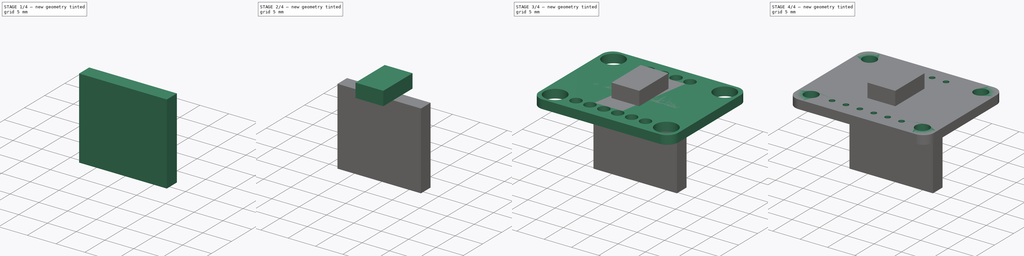
[diagram: build sequence overview — one tinted view per stage of 4, left to right]
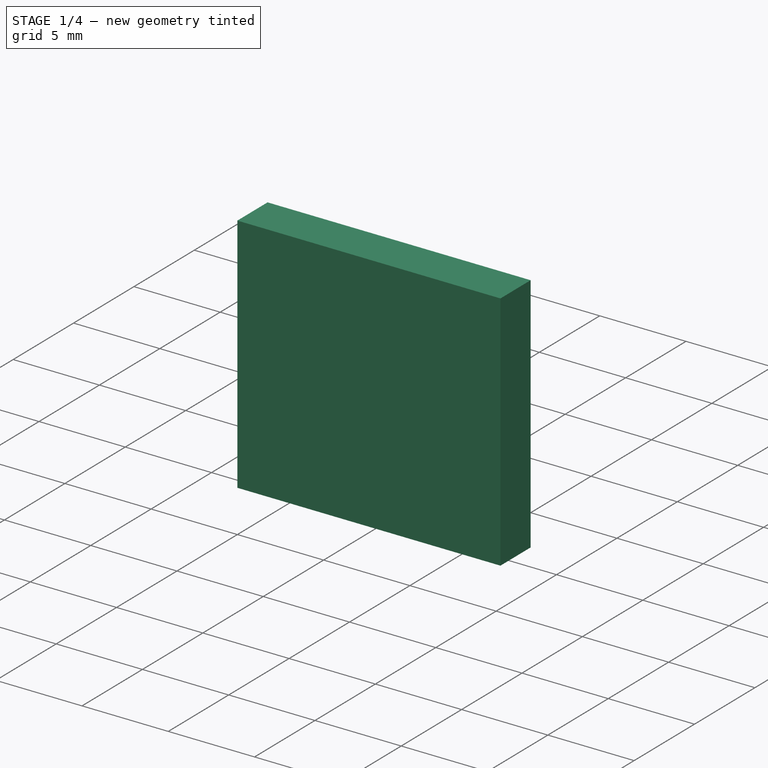
[diagram: stage 1 of 4 — iso view after this stage's code; geometry added in this stage tinted green]
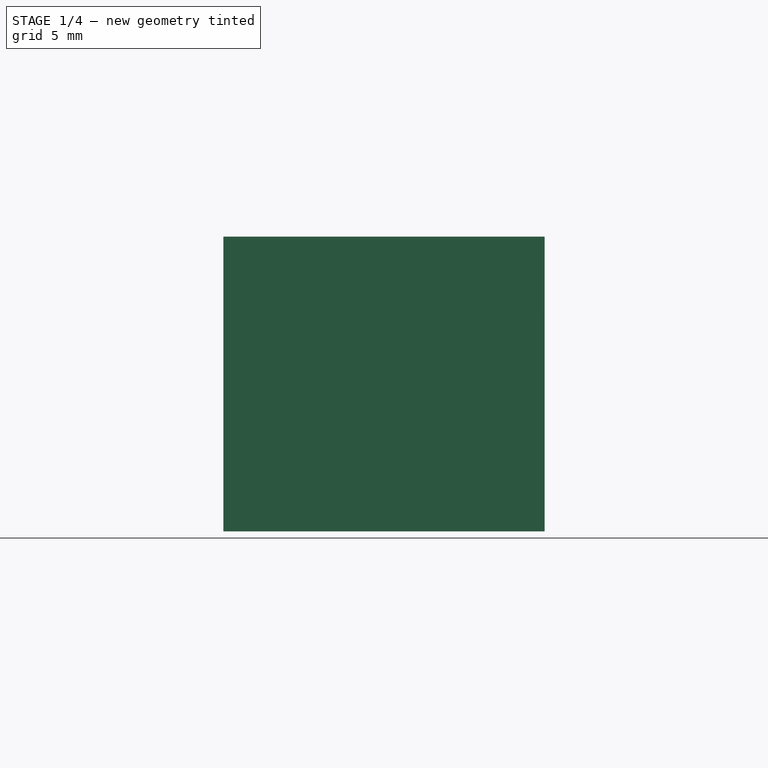
[diagram: stage 1 of 4 — front view after this stage's code; geometry added in this stage tinted green]
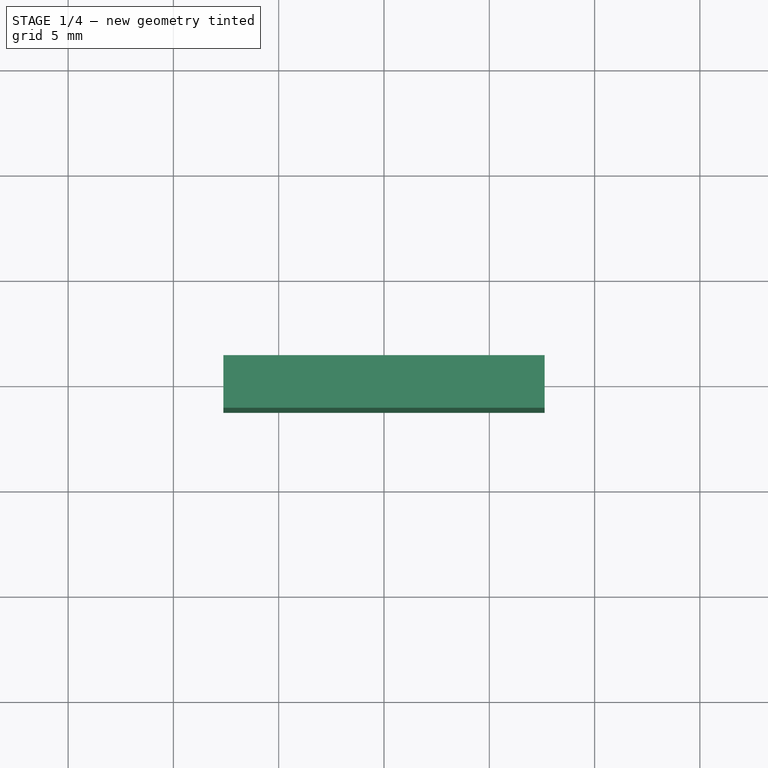
[diagram: stage 1 of 4 — top view after this stage's code; geometry added in this stage tinted green]
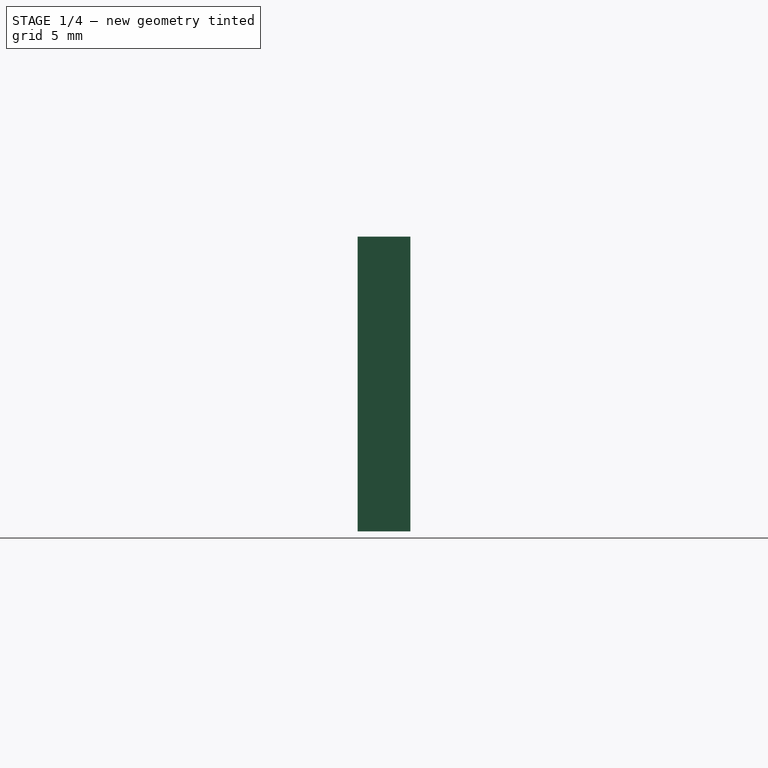
[diagram: stage 1 of 4 — right view after this stage's code; geometry added in this stage tinted green]
FCSTD DOCUMENT  (FreeCAD 0.19R24276 (Git))
Label: Adafruit_BNO055
License: All rights reserved
LicenseURL: http://en.wikipedia.org/wiki/All_rights_reserved
objects: Sketcher::SketchObject×13, PartDesign::Pad×8, PartDesign::Body×8, PartDesign::Pocket×5, App::Part×1
note: 47 computed .brp shape members not serialized (recipe doc carries the construction recipe); baked Part::Feature solids carry a one-line shape summary decoded from their .brp

FEATURE [PartDesign::Body] Body005  label="PinBlock1"
  Group = -> [Sketch009,Pad005]
  Origin = -> Origin006
  Placement = pos=(0,-7.6,-1.6) rot=(0,0,1;0rad)
  Tip = -> Pad005
FEATURE [Sketcher::SketchObject] Sketch010
  FullyConstrained = true
  MapMode = 5
  Support = -> [XY_Plane007]
  sketch-geometry (6):
    g0: LineSegment StartX=-6.625 StartY=0.3 StartZ=0 EndX=6.625 EndY=0.3 EndZ=0
    g1: LineSegment StartX=6.625 StartY=0.3 StartZ=0 EndX=6.625 EndY=-0.3 EndZ=0
    g2: LineSegment StartX=6.625 StartY=-0.3 StartZ=0 EndX=-6.625 EndY=-0.3 EndZ=0
    g3: LineSegment StartX=-6.625 StartY=-0.3 StartZ=0 EndX=-6.625 EndY=0.3 EndZ=0
    g4: LineSegment StartX=0 StartY=0 StartZ=0 EndX=2e-16 EndY=0.3 EndZ=0
    g5: LineSegment StartX=0 StartY=0 StartZ=0 EndX=6.625 EndY=0 EndZ=0
  constraints (16):
    c: Coincident(g0,g1)
    c: Coincident(g1,g2)
    c: Coincident(g2,g3)
    c: Coincident(g3,g0)
    c: Horizontal(g0)
    c: Horizontal(g2)
    c: Vertical(g1)
    c: Vertical(g3)
    c: Coincident(g4,g-1)
    c: PointOnObject(g4,g-2)
    c: Coincident(g5,g-1)
    c: PointOnObject(g5,g-1)
    c: Symmetric(g0,g0,g4)
    c: Symmetric(g0,g1,g5)
    c: DistanceY(g1,g0) = 0.6
    c: DistanceX(g0,g0) = 13.25
FEATURE [PartDesign::Pad] Pad006
  Direction = (1,1,1)
  Length = 8.5
  Length2 = 100
  Profile = -> Sketch010
  Reversed = true
  Type = 0
FEATURE [Sketcher::SketchObject] Sketch011
  FullyConstrained = true
  MapMode = 5
  Placement = pos=(0,0,0) rot=(1,0,0;1.5708rad)
  Support = -> [XZ_Plane007]
  sketch-geometry (29):
    g0: LineSegment StartX=-0.95 StartY=-0.5 StartZ=0 EndX=0.95 EndY=-0.5 EndZ=0
    g1: LineSegment StartX=0.95 StartY=-0.5 StartZ=0 EndX=0.95 EndY=-15.5 EndZ=0
    g2: LineSegment StartX=0.95 StartY=-15.5 StartZ=0 EndX=-0.95 EndY=-15.5 EndZ=0
    g3: LineSegment StartX=-0.95 StartY=-15.5 StartZ=0 EndX=-0.95 EndY=-0.5 EndZ=0
    g4: LineSegment StartX=0 StartY=0 StartZ=0 EndX=0 EndY=-0.5 EndZ=0
    g5: LineSegment StartX=-3.5 StartY=-0.5 StartZ=0 EndX=-1.6 EndY=-0.5 EndZ=0
    g6: LineSegment StartX=-1.6 StartY=-0.5 StartZ=0 EndX=-1.6 EndY=-15.5 EndZ=0
    g7: LineSegment StartX=-1.6 StartY=-15.5 StartZ=0 EndX=-3.5 EndY=-15.5 EndZ=0
    g8: LineSegment StartX=-3.5 StartY=-15.5 StartZ=0 EndX=-3.5 EndY=-0.5 EndZ=0
    g9: LineSegment StartX=-6.05 StartY=-0.5 StartZ=0 EndX=-4.15 EndY=-0.5 EndZ=0
    g10: LineSegment StartX=-4.15 StartY=-0.5 StartZ=0 EndX=-4.15 EndY=-15.5 EndZ=0
    g11: LineSegment StartX=-4.15 StartY=-15.5 StartZ=0 EndX=-6.05 EndY=-15.5 EndZ=0
    g12: LineSegment StartX=-6.05 StartY=-15.5 StartZ=0 EndX=-6.05 EndY=-0.5 EndZ=0
    g13: LineSegment StartX=1.6 StartY=-0.5 StartZ=0 EndX=3.5 EndY=-0.5 EndZ=0
    g14: LineSegment StartX=3.5 StartY=-0.5 StartZ=0 EndX=3.5 EndY=-15.5 EndZ=0
    g15: LineSegment StartX=3.5 StartY=-15.5 StartZ=0 EndX=1.6 EndY=-15.5 EndZ=0
    g16: LineSegment StartX=1.6 StartY=-15.5 StartZ=0 EndX=1.6 EndY=-0.5 EndZ=0
    g17: LineSegment StartX=4.15 StartY=-0.5 StartZ=0 EndX=6.05 EndY=-0.5 EndZ=0
    g18: LineSegment StartX=6.05 StartY=-0.5 StartZ=0 EndX=6.05 EndY=-15.5 EndZ=0
    g19: LineSegment StartX=6.05 StartY=-15.5 StartZ=0 EndX=4.15 EndY=-15.5 EndZ=0
    g20: LineSegment StartX=4.15 StartY=-15.5 StartZ=0 EndX=4.15 EndY=-0.5 EndZ=0
    g21: LineSegment StartX=-4.15 StartY=-0.5 StartZ=0 EndX=-3.5 EndY=-0.5 EndZ=0
    g22: LineSegment StartX=-1.6 StartY=-0.5 StartZ=0 EndX=-0.95 EndY=-0.5 EndZ=0
    g23: LineSegment StartX=0.95 StartY=-0.5 StartZ=0 EndX=1.6 EndY=-0.5 EndZ=0
    g24: LineSegment StartX=3.5 StartY=-0.5 StartZ=0 EndX=4.15 EndY=-0.5 EndZ=0
    g25: LineSegment StartX=-4.15 StartY=-15.5 StartZ=0 EndX=-3.5 EndY=-15.5 EndZ=0
    g26: LineSegment StartX=-1.6 StartY=-15.5 StartZ=0 EndX=-0.95 EndY=-15.5 EndZ=0
    g27: LineSegment StartX=0.95 StartY=-15.5 StartZ=0 EndX=1.6 EndY=-15.5 EndZ=0
    g28: LineSegment StartX=3.5 StartY=-15.5 StartZ=0 EndX=4.15 EndY=-15.5 EndZ=0
  constraints (78):
    c: Coincident(g0,g1)
    c: Coincident(g1,g2)
    c: Coincident(g2,g3)
    c: Coincident(g3,g0)
    c: Horizontal(g0)
    c: Horizontal(g2)
    c: Vertical(g1)
    c: Vertical(g3)
    c: Coincident(g4,g-1)
    c: Vertical(g4)
    c: Symmetric(g0,g0,g4)
    c: Distance(g0) = 1.9
    c: Distance(g1) = 15
    c: DistanceY(g4,g-1) = 0.5
    c: Coincident(g5,g6)
    c: Coincident(g6,g7)
    c: Coincident(g7,g8)
    c: Coincident(g8,g5)
    c: Horizontal(g5)
    c: Horizontal(g7)
    c: Vertical(g6)
    c: Vertical(g8)
    c: Coincident(g9,g10)
    c: Coincident(g10,g11)
    c: Coincident(g11,g12)
    c: Coincident(g12,g9)
    c: Horizontal(g9)
    c: Horizontal(g11)
    c: Vertical(g10)
    c: Vertical(g12)
    c: Coincident(g13,g14)
    c: Coincident(g14,g15)
    c: Coincident(g15,g16)
    c: Coincident(g16,g13)
    c: Horizontal(g13)
    c: Horizontal(g15)
    c: Vertical(g14)
    c: Vertical(g16)
    c: Coincident(g17,g18)
    c: Coincident(g18,g19)
    c: Coincident(g19,g20)
    c: Coincident(g20,g17)
    c: Horizontal(g17)
    c: Horizontal(g19)
    c: Vertical(g18)
    c: Vertical(g20)
    c: Coincident(g21,g9)
    c: Coincident(g21,g5)
    c: Coincident(g22,g5)
    c: Coincident(g22,g0)
    c: Coincident(g23,g0)
    c: Coincident(g23,g13)
    c: Coincident(g24,g13)
    c: Coincident(g24,g17)
    c: Coincident(g25,g10)
    c: Coincident(g25,g7)
    c: Coincident(g26,g6)
    c: Coincident(g26,g2)
    c: Horizontal(g26)
    c: Coincident(g27,g1)
    c: Coincident(g27,g15)
    c: Coincident(g28,g14)
    c: Coincident(g28,g19)
    c: Horizontal(g22)
    c: Horizontal(g21)
    c: Horizontal(g23)
    c: Horizontal(g24)
    c: Horizontal(g28)
    c: Horizontal(g27)
    c: Horizontal(g25)
    c: Equal(g21,g22)
    c: Equal(g23,g22)
    c: Equal(g23,g24)
    c: Equal(g5,g9)
    c: Equal(g0,g5)
    c: Equal(g5,g13)
    c: Equal(g13,g17)
    c: Distance(g23) = 0.65
FEATURE [PartDesign::Pocket] Pocket004
  BaseFeature = -> Pad006
  Length = 5
  Length2 = 100
  Midplane = true
  Profile = -> Sketch011
  Type = 1
FEATURE [PartDesign::Body] Body006  label="Pins"
  Group = -> [Sketch010,Pad006,Sketch011,Pocket004]
  Origin = -> Origin007
  Placement = pos=(0,-7.7,-1.6) rot=(0,0,1;0rad)
  Tip = -> Pocket004
FEATURE [Sketcher::SketchObject] Sketch012
  FullyConstrained = true
  MapMode = 5
  Support = -> [XY_Plane008]
  sketch-geometry (6):
    g0: LineSegment StartX=-7.625 StartY=1.25 StartZ=0 EndX=7.625 EndY=1.25 EndZ=0
    g1: LineSegment StartX=7.625 StartY=1.25 StartZ=0 EndX=7.625 EndY=-1.25 EndZ=0
    g2: LineSegment StartX=7.625 StartY=-1.25 StartZ=0 EndX=-7.625 EndY=-1.25 EndZ=0
    g3: LineSegment StartX=-7.625 StartY=-1.25 StartZ=0 EndX=-7.625 EndY=1.25 EndZ=0
    g4: LineSegment StartX=0 StartY=0 StartZ=0 EndX=-2e-15 EndY=1.25 EndZ=0
    g5: LineSegment StartX=0 StartY=0 StartZ=0 EndX=7.625 EndY=0 EndZ=0
  constraints (16):
    c: Coincident(g0,g1)
    c: Coincident(g1,g2)
    c: Coincident(g2,g3)
    c: Coincident(g3,g0)
    c: Horizontal(g0)
    c: Horizontal(g2)
    c: Vertical(g1)
    c: Vertical(g3)
    c: Coincident(g4,g-1)
    c: PointOnObject(g4,g-2)
    c: Coincident(g5,g-1)
    c: PointOnObject(g5,g-1)
    c: Symmetric(g0,g0,g4)
    c: Symmetric(g0,g1,g5)
    c: DistanceY(g1,g0) = 2.5
    c: DistanceX(g0,g0) = 15.25
FEATURE [PartDesign::Pad] Pad007
  Direction = (1,1,1)
  Length = 14
  Length2 = 100
  Profile = -> Sketch012
  Reversed = true
  Type = 0
FEATURE [PartDesign::Body] Body007  label="PinBlock2"
  Group = -> [Sketch012,Pad007]
  Origin = -> Origin008
  Placement = pos=(0,-7.7,-4.5) rot=(0,0,1;0rad)
  Tip = -> Pad007
FEATURE [App::Part] Part  label="AdaF_BNO055"
  Group = -> [Body,Body001,Body002,Body003,Body004,Body005,Body006,Body007]
  Origin = -> Origin
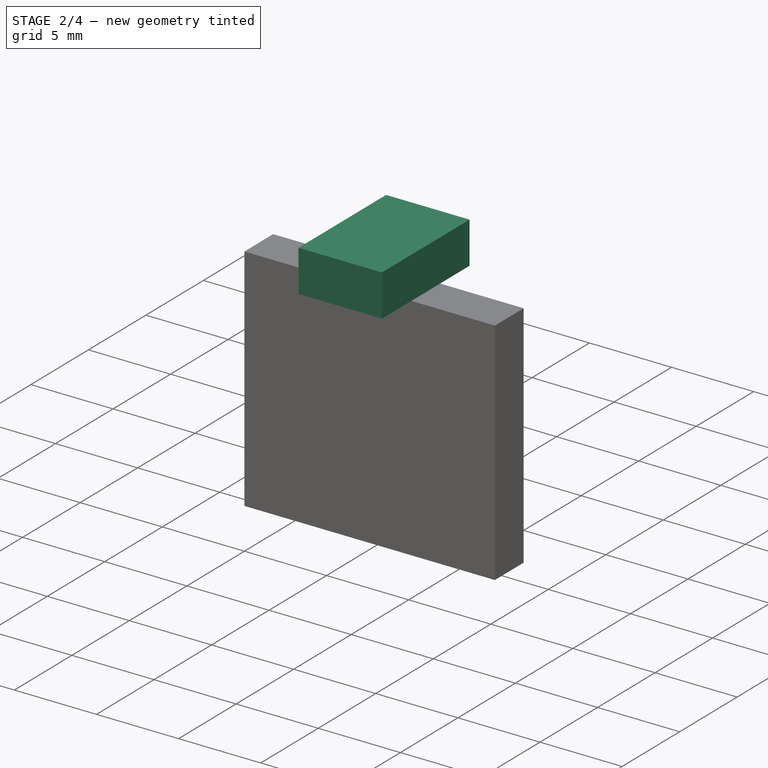
[diagram: stage 2 of 4 — iso view after this stage's code; geometry added in this stage tinted green]
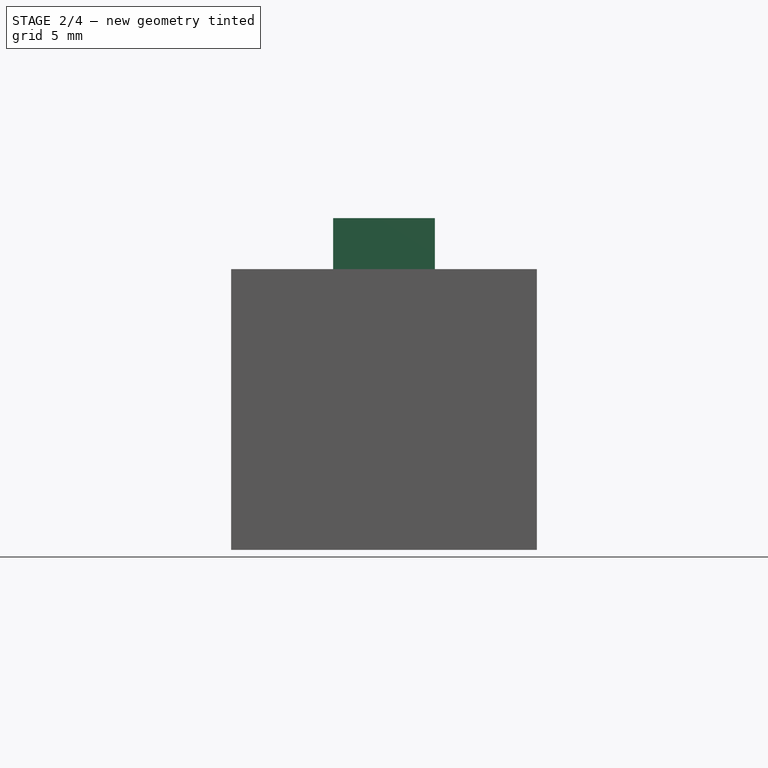
[diagram: stage 2 of 4 — front view after this stage's code; geometry added in this stage tinted green]
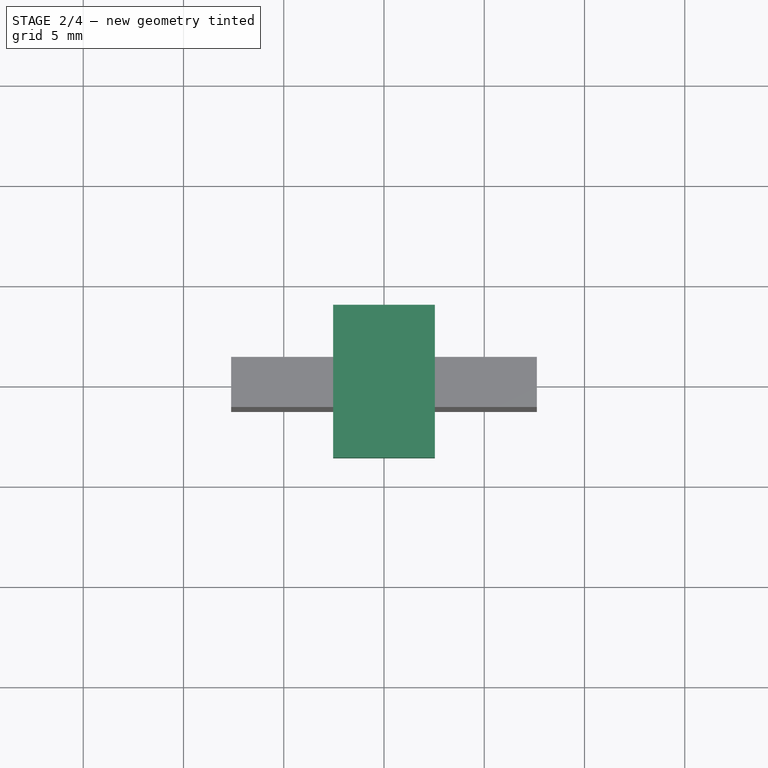
[diagram: stage 2 of 4 — top view after this stage's code; geometry added in this stage tinted green]
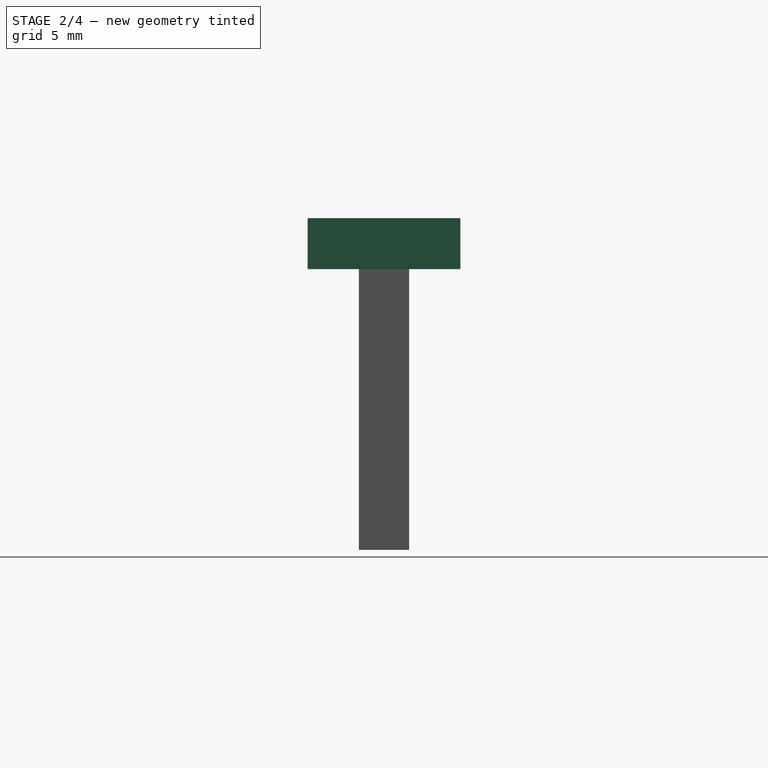
[diagram: stage 2 of 4 — right view after this stage's code; geometry added in this stage tinted green]
FEATURE [PartDesign::Body] Body002  label="MainChip"
  Group = -> [Sketch006,Pad002]
  Origin = -> Origin003
  Tip = -> Pad002
FEATURE [Sketcher::SketchObject] Sketch007
  FullyConstrained = true
  MapMode = 5
  Support = -> [XY_Plane004]
  sketch-geometry (6):
    g0: LineSegment StartX=-2.54 StartY=3.81 StartZ=0 EndX=2.54 EndY=3.81 EndZ=0
    g1: LineSegment StartX=2.54 StartY=3.81 StartZ=0 EndX=2.54 EndY=-3.81 EndZ=0
    g2: LineSegment StartX=2.54 StartY=-3.81 StartZ=0 EndX=-2.54 EndY=-3.81 EndZ=0
    g3: LineSegment StartX=-2.54 StartY=-3.81 StartZ=0 EndX=-2.54 EndY=3.81 EndZ=0
    g4: LineSegment StartX=0 StartY=0 StartZ=0 EndX=0 EndY=3.81 EndZ=0
    g5: LineSegment StartX=0 StartY=0 StartZ=0 EndX=2.54 EndY=0 EndZ=0
  constraints (16):
    c: Coincident(g0,g1)
    c: Coincident(g1,g2)
    c: Coincident(g2,g3)
    c: Coincident(g3,g0)
    c: Horizontal(g0)
    c: Horizontal(g2)
    c: Vertical(g1)
    c: Vertical(g3)
    c: Coincident(g4,g-1)
    c: PointOnObject(g4,g-2)
    c: Coincident(g5,g-1)
    c: PointOnObject(g5,g-1)
    c: Symmetric(g0,g0,g4)
    c: Symmetric(g0,g1,g5)
    c: Distance(g3) = 7.62
    c: Distance(g0) = 5.08
FEATURE [PartDesign::Pad] Pad003
  Direction = (1,1,1)
  Length = 2.54
  Length2 = 100
  Profile = -> Sketch007
  Type = 0
FEATURE [PartDesign::Body] Body003  label="QwiicConnect1"
  Group = -> [Sketch007,Pad003]
  Origin = -> Origin004
  Placement = pos=(-10,0,0) rot=(0,0,1;0rad)
  Tip = -> Pad003
FEATURE [Sketcher::SketchObject] Sketch008
  FullyConstrained = true
  MapMode = 5
  Support = -> [XY_Plane005]
  sketch-geometry (6):
    g0: LineSegment StartX=-2.54 StartY=3.81 StartZ=0 EndX=2.54 EndY=3.81 EndZ=0
    g1: LineSegment StartX=2.54 StartY=3.81 StartZ=0 EndX=2.54 EndY=-3.81 EndZ=0
    g2: LineSegment StartX=2.54 StartY=-3.81 StartZ=0 EndX=-2.54 EndY=-3.81 EndZ=0
    g3: LineSegment StartX=-2.54 StartY=-3.81 StartZ=0 EndX=-2.54 EndY=3.81 EndZ=0
    g4: LineSegment StartX=0 StartY=0 StartZ=0 EndX=0 EndY=3.81 EndZ=0
    g5: LineSegment StartX=0 StartY=0 StartZ=0 EndX=2.54 EndY=0 EndZ=0
  constraints (16):
    c: Coincident(g0,g1)
    c: Coincident(g1,g2)
    c: Coincident(g2,g3)
    c: Coincident(g3,g0)
    c: Horizontal(g0)
    c: Horizontal(g2)
    c: Vertical(g1)
    c: Vertical(g3)
    c: Coincident(g4,g-1)
    c: PointOnObject(g4,g-2)
    c: Coincident(g5,g-1)
    c: PointOnObject(g5,g-1)
    c: Symmetric(g0,g0,g4)
    c: Symmetric(g0,g1,g5)
    c: Distance(g3) = 7.62
    c: Distance(g0) = 5.08
FEATURE [PartDesign::Pad] Pad004
  Direction = (1,1,1)
  Length = 2.54
  Length2 = 100
  Profile = -> Sketch008
  Type = 0
FEATURE [PartDesign::Body] Body004  label="QwiicConnect2"
  Group = -> [Sketch008,Pad004]
  Origin = -> Origin005
  Placement = pos=(10,0,0) rot=(0,0,1;0rad)
  Tip = -> Pad004
FEATURE [Sketcher::SketchObject] Sketch009
  FullyConstrained = true
  MapMode = 5
  Support = -> [XY_Plane006]
  sketch-geometry (6):
    g0: LineSegment StartX=-7.625 StartY=1.25 StartZ=0 EndX=7.625 EndY=1.25 EndZ=0
    g1: LineSegment StartX=7.625 StartY=1.25 StartZ=0 EndX=7.625 EndY=-1.25 EndZ=0
    g2: LineSegment StartX=7.625 StartY=-1.25 StartZ=0 EndX=-7.625 EndY=-1.25 EndZ=0
    g3: LineSegment StartX=-7.625 StartY=-1.25 StartZ=0 EndX=-7.625 EndY=1.25 EndZ=0
    g4: LineSegment StartX=0 StartY=0 StartZ=0 EndX=7.625 EndY=0 EndZ=0
    g5: LineSegment StartX=0 StartY=0 StartZ=0 EndX=-8e-16 EndY=1.25 EndZ=0
  constraints (16):
    c: Coincident(g0,g1)
    c: Coincident(g1,g2)
    c: Coincident(g2,g3)
    c: Coincident(g3,g0)
    c: Horizontal(g0)
    c: Horizontal(g2)
    c: Vertical(g1)
    c: Vertical(g3)
    c: Coincident(g4,g-1)
    c: PointOnObject(g4,g-1)
    c: Coincident(g5,g-1)
    c: PointOnObject(g5,g-2)
    c: Symmetric(g0,g0,g5)
    c: Symmetric(g0,g1,g4)
    c: DistanceY(g1,g0) = 2.5
    c: DistanceX(g0,g0) = 15.25
FEATURE [PartDesign::Pad] Pad005
  Direction = (1,1,1)
  Length = 2.5
  Length2 = 100
  Profile = -> Sketch009
  Reversed = true
  Type = 0
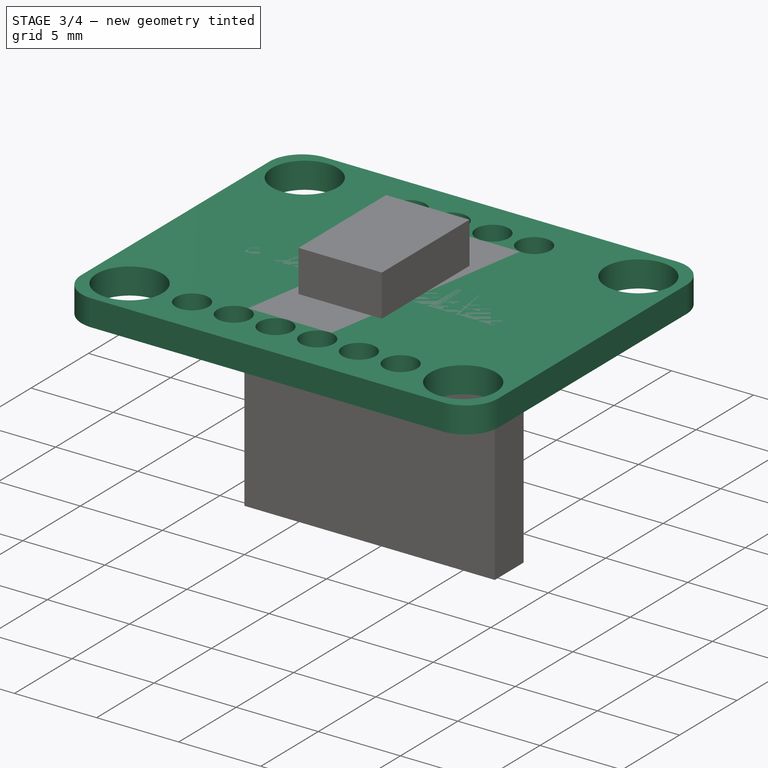
[diagram: stage 3 of 4 — iso view after this stage's code; geometry added in this stage tinted green]
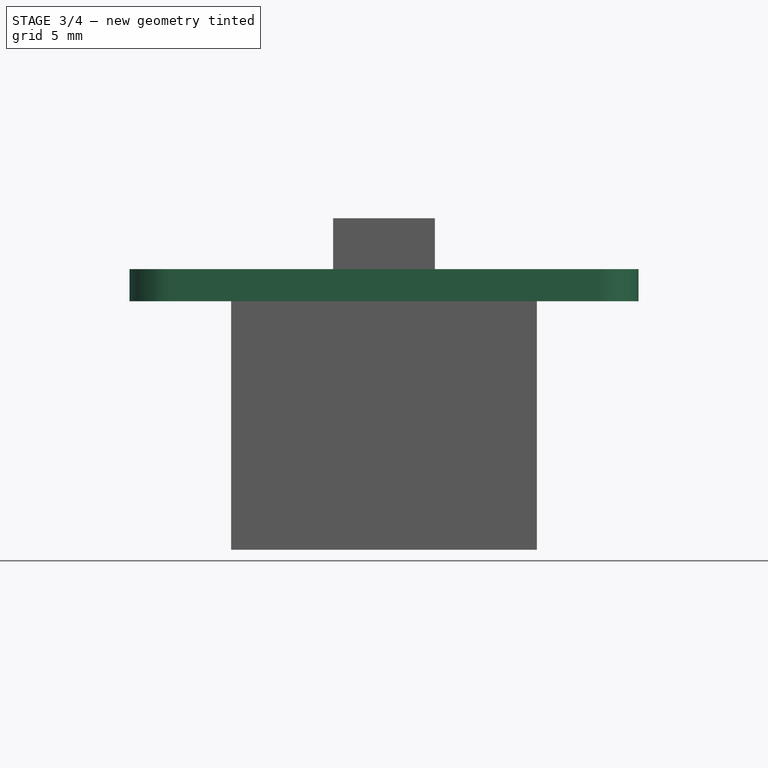
[diagram: stage 3 of 4 — front view after this stage's code; geometry added in this stage tinted green]
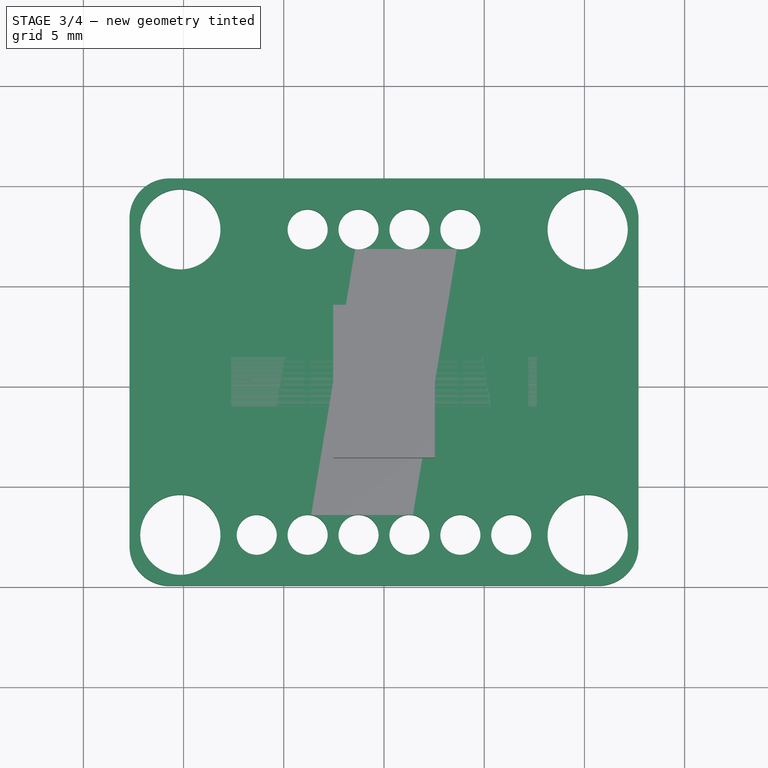
[diagram: stage 3 of 4 — top view after this stage's code; geometry added in this stage tinted green]
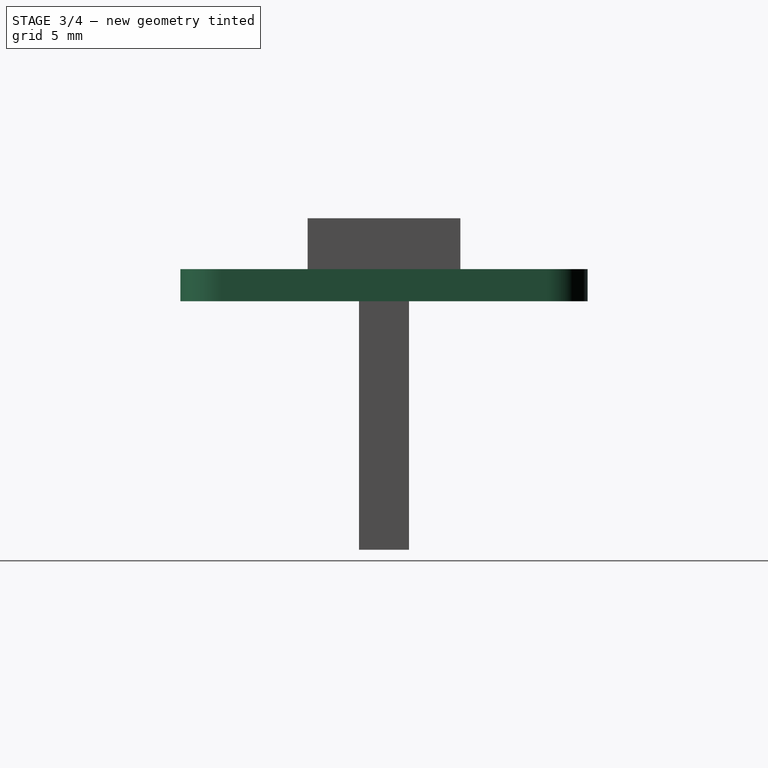
[diagram: stage 3 of 4 — right view after this stage's code; geometry added in this stage tinted green]
FEATURE [Sketcher::SketchObject] Sketch
  FullyConstrained = true
  MapMode = 5
  Support = -> [XY_Plane001]
  sketch-geometry (10):
    g0: LineSegment StartX=-10.7 StartY=10.16 StartZ=0 EndX=10.7 EndY=10.16 EndZ=0
    g1: LineSegment StartX=12.7 StartY=8.16 StartZ=0 EndX=12.7 EndY=-8.16 EndZ=0
    g2: LineSegment StartX=10.7 StartY=-10.16 StartZ=0 EndX=-10.7 EndY=-10.16 EndZ=0
    g3: LineSegment StartX=-12.7 StartY=-8.16 StartZ=0 EndX=-12.7 EndY=8.16 EndZ=0
    g4: LineSegment StartX=0 StartY=0 StartZ=0 EndX=0 EndY=10.16 EndZ=0
    g5: LineSegment StartX=0 StartY=0 StartZ=0 EndX=12.7 EndY=0 EndZ=0
    g6: ArcOfCircle CenterX=-10.7 CenterY=8.16 CenterZ=0 NormalX=0 NormalY=0 NormalZ=1 AngleXU=0 Radius=2 StartAngle=1.5708 EndAngle=3.14159
    g7: ArcOfCircle CenterX=10.7 CenterY=8.16 CenterZ=0 NormalX=0 NormalY=0 NormalZ=1 AngleXU=0 Radius=2 StartAngle=0 EndAngle=1.5708
    g8: ArcOfCircle CenterX=10.7 CenterY=-8.16 CenterZ=0 NormalX=0 NormalY=0 NormalZ=1 AngleXU=0 Radius=2 StartAngle=4.71239 EndAngle=6.28319
    g9: ArcOfCircle CenterX=-10.7 CenterY=-8.16 CenterZ=0 NormalX=0 NormalY=0 NormalZ=1 AngleXU=0 Radius=2 StartAngle=3.14159 EndAngle=4.71239
  constraints (24):
    c: Horizontal(g0)
    c: Horizontal(g2)
    c: Vertical(g1)
    c: Vertical(g3)
    c: Coincident(g4,g-1)
    c: PointOnObject(g4,g-2)
    c: Coincident(g5,g-1)
    c: PointOnObject(g5,g-1)
    c: Tangent(g3,g6) = 1.5708
    c: Tangent(g0,g6) = 1.5708
    c: Tangent(g0,g7) = 1.5708
    c: Tangent(g1,g7) = 1.5708
    c: Tangent(g1,g8) = 1.5708
    c: Tangent(g2,g8) = 1.5708
    c: Tangent(g2,g9) = 1.5708
    c: Tangent(g3,g9) = 1.5708
    c: Equal(g6,g7)
    c: Equal(g6,g8)
    c: Equal(g6,g9)
    c: Symmetric(g0,g0,g4)
    c: Radius(g7) = 2
    c: Symmetric(g1,g1,g5)
    c: DistanceX(g3,g1) = 25.4
    c: DistanceY(g2,g0) = 20.32
FEATURE [PartDesign::Pad] Pad  label="MainBoardPad"
  Direction = (1,1,1)
  Length = 1.6
  Length2 = 100
  Profile = -> Sketch
  Reversed = true
  Type = 0
FEATURE [Sketcher::SketchObject] Sketch001
  FullyConstrained = true
  MapMode = 5
  Support = -> [XY_Plane001]
  sketch-geometry (10):
    g0: LineSegment StartX=-10.16 StartY=7.62 StartZ=0 EndX=10.16 EndY=7.62 EndZ=0
    g1: LineSegment StartX=10.16 StartY=7.62 StartZ=0 EndX=10.16 EndY=-7.62 EndZ=0
    g2: LineSegment StartX=10.16 StartY=-7.62 StartZ=0 EndX=-10.16 EndY=-7.62 EndZ=0
    g3: LineSegment StartX=-10.16 StartY=-7.62 StartZ=0 EndX=-10.16 EndY=7.62 EndZ=0
    g4: LineSegment StartX=0 StartY=0 StartZ=0 EndX=0 EndY=7.62 EndZ=0
    g5: LineSegment StartX=0 StartY=0 StartZ=0 EndX=10.16 EndY=1e-16 EndZ=0
    g6: Circle CenterX=-10.16 CenterY=7.62 CenterZ=0 NormalX=0 NormalY=0 NormalZ=1 AngleXU=0 Radius=2
    g7: Circle CenterX=10.16 CenterY=7.62 CenterZ=0 NormalX=0 NormalY=0 NormalZ=1 AngleXU=0 Radius=2
    g8: Circle CenterX=10.16 CenterY=-7.62 CenterZ=0 NormalX=0 NormalY=0 NormalZ=1 AngleXU=0 Radius=2
    g9: Circle CenterX=-10.16 CenterY=-7.62 CenterZ=0 NormalX=0 NormalY=0 NormalZ=1 AngleXU=0 Radius=2
  constraints (24):
    c: Coincident(g0,g1)
    c: Coincident(g1,g2)
    c: Coincident(g2,g3)
    c: Coincident(g3,g0)
    c: Horizontal(g0)
    c: Horizontal(g2)
    c: Vertical(g1)
    c: Vertical(g3)
    c: Coincident(g4,g-1)
    c: PointOnObject(g4,g-2)
    c: Coincident(g5,g-1)
    c: PointOnObject(g5,g-1)
    c: Symmetric(g0,g0,g4)
    c: Symmetric(g0,g1,g5)
    c: Coincident(g6,g0)
    c: Coincident(g7,g0)
    c: Coincident(g8,g1)
    c: Coincident(g9,g2)
    c: Equal(g6,g7)
    c: Equal(g7,g8)
    c: Equal(g8,g9)
    c: DistanceX(g6,g7) = 20.32
    c: DistanceY(g8,g7) = 15.24
    c: Diameter(g8) = 4
FEATURE [PartDesign::Pocket] Pocket  label="MountHoles"
  BaseFeature = -> Pad
  Length = 5
  Length2 = 100
  Midplane = true
  Profile = -> Sketch001
  Reversed = true
  Type = 1
FEATURE [PartDesign::Body] Body001  label="GoldBoard"
  Group = -> [Sketch002,Pad001,Sketch003,Pocket001,Sketch004,Pocket002]
  Origin = -> Origin002
  Placement = pos=(0,0,-0.1) rot=(0,0,1;0rad)
  Tip = -> Pocket002
FEATURE [Sketcher::SketchObject] Sketch005
  FullyConstrained = true
  MapMode = 5
  Support = -> [XY_Plane001]
  sketch-geometry (20):
    g0: LineSegment StartX=0 StartY=0 StartZ=0 EndX=0 EndY=7.62 EndZ=0
    g1: LineSegment StartX=-1.27 StartY=7.62 StartZ=0 EndX=1.27 EndY=7.62 EndZ=0
    g2: LineSegment StartX=1.27 StartY=7.62 StartZ=0 EndX=3.81 EndY=7.62 EndZ=0
    g3: LineSegment StartX=-1.27 StartY=7.62 StartZ=0 EndX=-3.81 EndY=7.62 EndZ=0
    g4: LineSegment StartX=0 StartY=0 StartZ=0 EndX=0 EndY=-7.62 EndZ=0
    g5: LineSegment StartX=-1.27 StartY=-7.62 StartZ=0 EndX=1.27 EndY=-7.62 EndZ=0
    g6: LineSegment StartX=1.27 StartY=-7.62 StartZ=0 EndX=3.81 EndY=-7.62 EndZ=0
    g7: LineSegment StartX=3.81 StartY=-7.62 StartZ=0 EndX=6.35 EndY=-7.62 EndZ=0
    g8: LineSegment StartX=-1.27 StartY=-7.62 StartZ=0 EndX=-3.81 EndY=-7.62 EndZ=0
    g9: LineSegment StartX=-3.81 StartY=-7.62 StartZ=0 EndX=-6.35 EndY=-7.62 EndZ=0
    g10: Circle CenterX=-3.81 CenterY=7.62 CenterZ=0 NormalX=0 NormalY=0 NormalZ=1 AngleXU=0 Radius=1
    g11: Circle CenterX=-1.27 CenterY=7.62 CenterZ=0 NormalX=0 NormalY=0 NormalZ=1 AngleXU=0 Radius=1
    g12: Circle CenterX=1.27 CenterY=7.62 CenterZ=0 NormalX=0 NormalY=0 NormalZ=1 AngleXU=0 Radius=1
    g13: Circle CenterX=3.81 CenterY=7.62 CenterZ=0 NormalX=0 NormalY=0 NormalZ=1 AngleXU=0 Radius=1
    g14: Circle CenterX=-6.35 CenterY=-7.62 CenterZ=0 NormalX=0 NormalY=0 NormalZ=1 AngleXU=0 Radius=1
    g15: Circle CenterX=-3.81 CenterY=-7.62 CenterZ=0 NormalX=0 NormalY=0 NormalZ=1 AngleXU=0 Radius=1
    g16: Circle CenterX=-1.27 CenterY=-7.62 CenterZ=0 NormalX=0 NormalY=0 NormalZ=1 AngleXU=0 Radius=1
    g17: Circle CenterX=1.27 CenterY=-7.62 CenterZ=0 NormalX=0 NormalY=0 NormalZ=1 AngleXU=0 Radius=1
    g18: Circle CenterX=3.81 CenterY=-7.62 CenterZ=0 NormalX=0 NormalY=0 NormalZ=1 AngleXU=0 Radius=1
    g19: Circle CenterX=6.35 CenterY=-7.62 CenterZ=0 NormalX=0 NormalY=0 NormalZ=1 AngleXU=0 Radius=1
  constraints (50):
    c: Coincident(g0,g-1)
    c: PointOnObject(g0,g-2)
    c: Horizontal(g1)
    c: Coincident(g2,g1)
    c: Horizontal(g2)
    c: Coincident(g3,g1)
    c: Horizontal(g3)
    c: Coincident(g4,g-1)
    c: PointOnObject(g4,g-2)
    c: Horizontal(g5)
    c: Coincident(g6,g5)
    c: Horizontal(g6)
    c: Coincident(g7,g6)
    c: Horizontal(g7)
    c: Coincident(g8,g5)
    c: Horizontal(g8)
    c: Coincident(g9,g8)
    c: Horizontal(g9)
    c: Symmetric(g5,g5,g4)
    c: Symmetric(g1,g1,g0)
    c: Equal(g3,g1)
    c: Equal(g3,g2)
    c: Equal(g9,g8)
    c: Equal(g8,g5)
    c: Equal(g5,g6)
    c: Equal(g6,g7)
    c: Equal(g9,g3)
    c: Equal(g0,g4)
    c: Coincident(g10,g3)
    c: Coincident(g11,g1)
    c: Coincident(g12,g1)
    c: Coincident(g13,g2)
    c: Coincident(g14,g9)
    c: Coincident(g15,g8)
    c: Coincident(g16,g5)
    c: Coincident(g17,g5)
    c: Coincident(g18,g6)
    c: Coincident(g19,g7)
    c: DistanceY(g19,g13) = 15.24
    c: Equal(g10,g11)
    c: Equal(g11,g12)
    c: Equal(g12,g13)
    c: Equal(g14,g15)
    c: Equal(g15,g16)
    c: Equal(g16,g17)
    c: Equal(g17,g18)
    c: Equal(g19,g18)
    c: Equal(g14,g10)
    c: Diameter(g13) = 2
    c: Distance(g3) = 2.54
FEATURE [PartDesign::Pocket] Pocket003  label="PinHoles"
  BaseFeature = -> Pocket
  Length = 5
  Length2 = 100
  Midplane = true
  Profile = -> Sketch005
  Type = 1
FEATURE [PartDesign::Body] Body  label="MainBoard"
  Group = -> [Sketch,Pad,Sketch001,Pocket,Sketch005,Pocket003]
  Origin = -> Origin001
  Tip = -> Pocket003
FEATURE [Sketcher::SketchObject] Sketch006
  FullyConstrained = true
  MapMode = 5
  Support = -> [XY_Plane001]
  sketch-geometry (6):
    g0: LineSegment StartX=-1.905 StartY=3.81 StartZ=0 EndX=1.905 EndY=3.81 EndZ=0
    g1: LineSegment StartX=1.905 StartY=3.81 StartZ=0 EndX=1.905 EndY=-3.81 EndZ=0
    g2: LineSegment StartX=1.905 StartY=-3.81 StartZ=0 EndX=-1.905 EndY=-3.81 EndZ=0
    g3: LineSegment StartX=-1.905 StartY=-3.81 StartZ=0 EndX=-1.905 EndY=3.81 EndZ=0
    g4: LineSegment StartX=0 StartY=0 StartZ=0 EndX=0 EndY=3.81 EndZ=0
    g5: LineSegment StartX=0 StartY=0 StartZ=0 EndX=1.905 EndY=0 EndZ=0
  constraints (16):
    c: Coincident(g0,g1)
    c: Coincident(g1,g2)
    c: Coincident(g2,g3)
    c: Coincident(g3,g0)
    c: Horizontal(g0)
    c: Horizontal(g2)
    c: Vertical(g1)
    c: Vertical(g3)
    c: Coincident(g4,g-1)
    c: PointOnObject(g4,g-2)
    c: Coincident(g5,g-1)
    c: PointOnObject(g5,g-1)
    c: Symmetric(g0,g0,g4)
    c: Symmetric(g0,g1,g5)
    c: DistanceY(g1,g0) = 7.62
    c: DistanceX(g0,g0) = 3.81
FEATURE [PartDesign::Pad] Pad002
  Direction = (1,1,1)
  Length = 1
  Length2 = 100
  Profile = -> Sketch006
  Type = 0
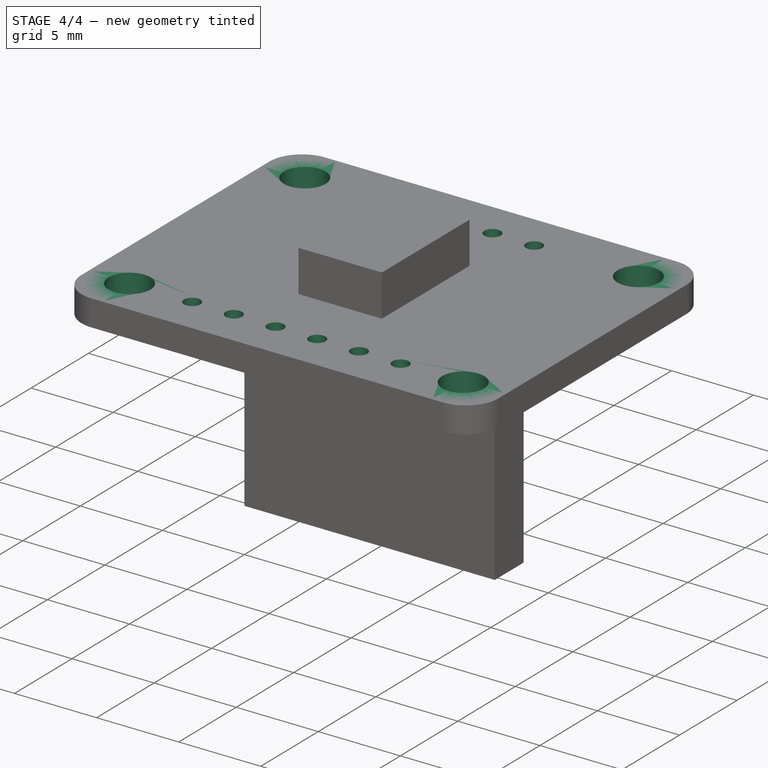
[diagram: stage 4 of 4 — iso view after this stage's code; geometry added in this stage tinted green]
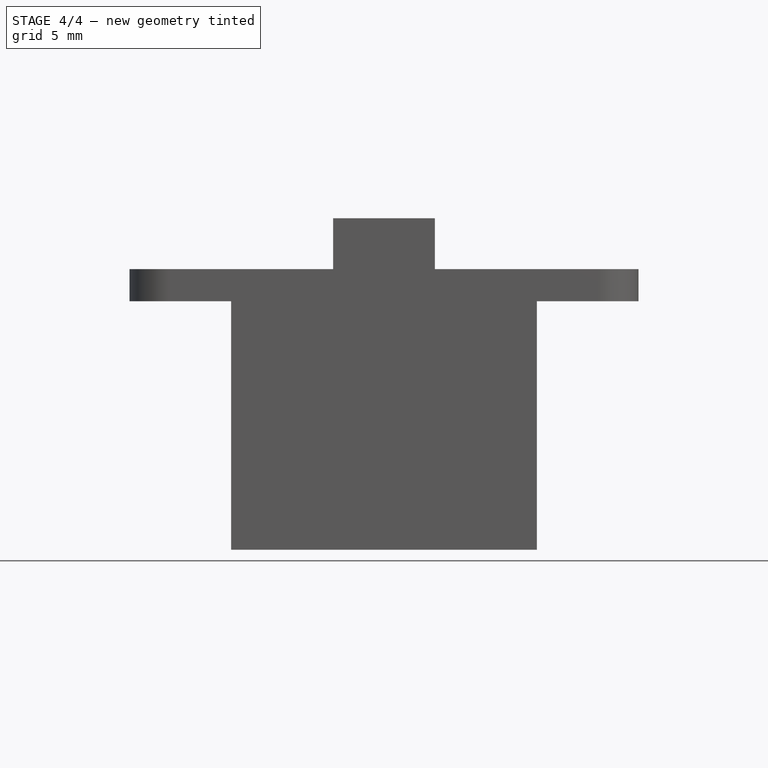
[diagram: stage 4 of 4 — front view after this stage's code; geometry added in this stage tinted green]
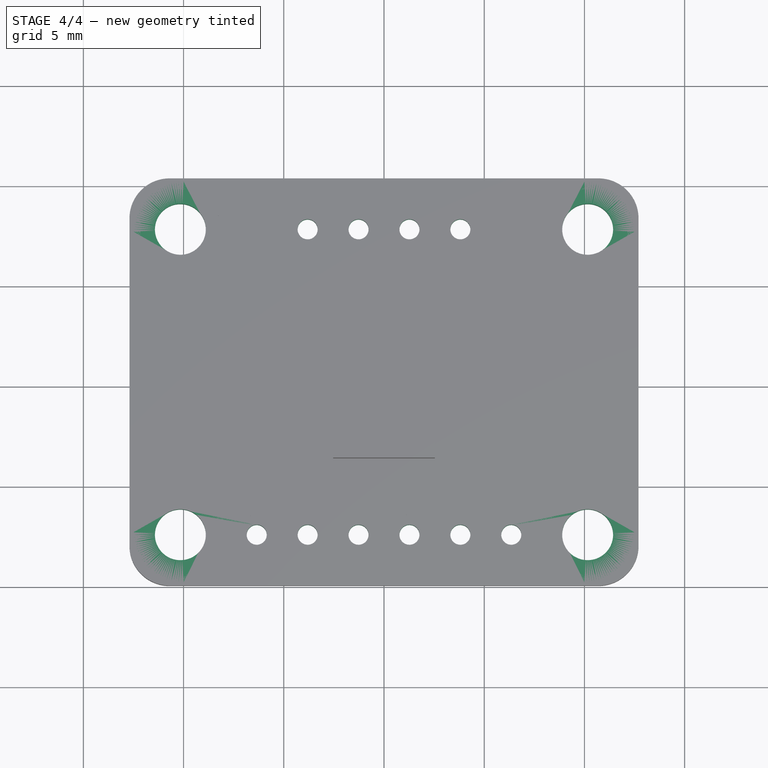
[diagram: stage 4 of 4 — top view after this stage's code; geometry added in this stage tinted green]
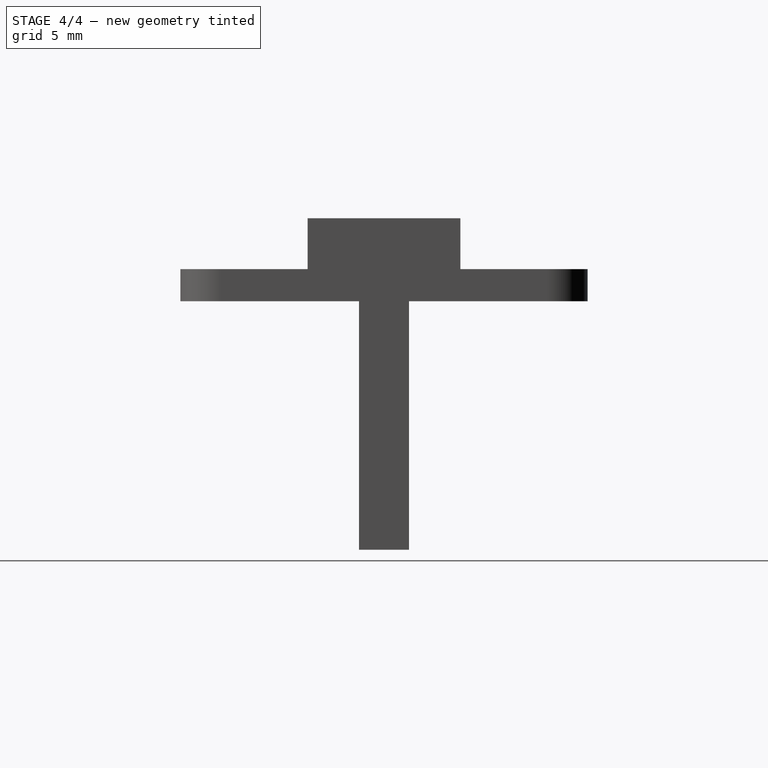
[diagram: stage 4 of 4 — right view after this stage's code; geometry added in this stage tinted green]
FEATURE [Sketcher::SketchObject] Sketch002
  FullyConstrained = true
  MapMode = 5
  Support = -> [XY_Plane002]
  sketch-geometry (10):
    g0: LineSegment StartX=-10 StartY=10 StartZ=0 EndX=10 EndY=10 EndZ=0
    g1: LineSegment StartX=12.5 StartY=7.5 StartZ=0 EndX=12.5 EndY=-7.5 EndZ=0
    g2: LineSegment StartX=10 StartY=-10 StartZ=0 EndX=-10 EndY=-10 EndZ=0
    g3: LineSegment StartX=-12.5 StartY=-7.5 StartZ=0 EndX=-12.5 EndY=7.5 EndZ=0
    g4: LineSegment StartX=0 StartY=0 StartZ=0 EndX=0 EndY=10 EndZ=0
    g5: LineSegment StartX=0 StartY=0 StartZ=0 EndX=12.5 EndY=0 EndZ=0
    g6: ArcOfCircle CenterX=-10 CenterY=7.5 CenterZ=0 NormalX=0 NormalY=0 NormalZ=1 AngleXU=0 Radius=2.5 StartAngle=1.5708 EndAngle=3.14159
    g7: ArcOfCircle CenterX=10 CenterY=7.5 CenterZ=0 NormalX=0 NormalY=0 NormalZ=1 AngleXU=0 Radius=2.5 StartAngle=1.4289e-11 EndAngle=1.5708
    g8: ArcOfCircle CenterX=10 CenterY=-7.5 CenterZ=0 NormalX=0 NormalY=0 NormalZ=1 AngleXU=0 Radius=2.5 StartAngle=4.71239 EndAngle=6.28319
    g9: ArcOfCircle CenterX=-10 CenterY=-7.5 CenterZ=0 NormalX=0 NormalY=0 NormalZ=1 AngleXU=0 Radius=2.5 StartAngle=3.14159 EndAngle=4.71239
  constraints (24):
    c: Horizontal(g0)
    c: Horizontal(g2)
    c: Vertical(g1)
    c: Vertical(g3)
    c: Coincident(g4,g-1)
    c: PointOnObject(g4,g-2)
    c: Coincident(g5,g-1)
    c: PointOnObject(g5,g-1)
    c: Tangent(g3,g6) = 1.5708
    c: Tangent(g0,g6) = 1.5708
    c: Tangent(g0,g7) = 1.5708
    c: Tangent(g1,g7) = 1.5708
    c: Tangent(g1,g8) = 1.5708
    c: Tangent(g2,g8) = 1.5708
    c: Tangent(g2,g9) = 1.5708
    c: Tangent(g3,g9) = 1.5708
    c: Equal(g6,g7)
    c: Equal(g6,g9)
    c: Equal(g6,g8)
    c: Symmetric(g0,g0,g4)
    c: Radius(g7) = 2.5
    c: DistanceX(g3,g1) = 25
    c: Symmetric(g1,g1,g5)
    c: DistanceY(g2,g0) = 20
FEATURE [PartDesign::Pad] Pad001  label="MainBoardPad001"
  Direction = (1,1,1)
  Length = 1.4
  Length2 = 100
  Profile = -> Sketch002
  Reversed = true
  Type = 0
FEATURE [Sketcher::SketchObject] Sketch003
  FullyConstrained = true
  MapMode = 5
  Support = -> [XY_Plane002]
  sketch-geometry (20):
    g0: LineSegment StartX=0 StartY=0 StartZ=0 EndX=0 EndY=7.62 EndZ=0
    g1: LineSegment StartX=1.27 StartY=7.62 StartZ=0 EndX=3.81 EndY=7.62 EndZ=0
    g2: LineSegment StartX=-1.27 StartY=7.62 StartZ=0 EndX=-3.81 EndY=7.62 EndZ=0
    g3: LineSegment StartX=0 StartY=0 StartZ=0 EndX=0 EndY=-7.62 EndZ=0
    g4: LineSegment StartX=1.27 StartY=-7.62 StartZ=0 EndX=3.81 EndY=-7.62 EndZ=0
    g5: LineSegment StartX=3.81 StartY=-7.62 StartZ=0 EndX=6.35 EndY=-7.62 EndZ=0
    g6: LineSegment StartX=-1.27 StartY=-7.62 StartZ=0 EndX=-3.81 EndY=-7.62 EndZ=0
    g7: LineSegment StartX=-3.81 StartY=-7.62 StartZ=0 EndX=-6.35 EndY=-7.62 EndZ=0
    g8: LineSegment StartX=-1.27 StartY=7.62 StartZ=0 EndX=1.27 EndY=7.62 EndZ=0
    g9: LineSegment StartX=-1.27 StartY=-7.62 StartZ=0 EndX=1.27 EndY=-7.62 EndZ=0
    g10: Circle CenterX=1.27 CenterY=7.62 CenterZ=0 NormalX=0 NormalY=0 NormalZ=1 AngleXU=0 Radius=0.5
    g11: Circle CenterX=3.81 CenterY=7.62 CenterZ=0 NormalX=0 NormalY=0 NormalZ=1 AngleXU=0 Radius=0.5
    g12: Circle CenterX=-1.27 CenterY=7.62 CenterZ=0 NormalX=0 NormalY=0 NormalZ=1 AngleXU=0 Radius=0.5
    g13: Circle CenterX=-3.81 CenterY=7.62 CenterZ=0 NormalX=0 NormalY=0 NormalZ=1 AngleXU=0 Radius=0.5
    g14: Circle CenterX=6.35 CenterY=-7.62 CenterZ=0 NormalX=0 NormalY=0 NormalZ=1 AngleXU=0 Radius=0.5
    g15: Circle CenterX=3.81 CenterY=-7.62 CenterZ=0 NormalX=0 NormalY=0 NormalZ=1 AngleXU=0 Radius=0.5
    g16: Circle CenterX=1.27 CenterY=-7.62 CenterZ=0 NormalX=0 NormalY=0 NormalZ=1 AngleXU=0 Radius=0.5
    g17: Circle CenterX=-1.27 CenterY=-7.62 CenterZ=0 NormalX=0 NormalY=0 NormalZ=1 AngleXU=0 Radius=0.5
    g18: Circle CenterX=-3.81 CenterY=-7.62 CenterZ=0 NormalX=0 NormalY=0 NormalZ=1 AngleXU=0 Radius=0.5
    g19: Circle CenterX=-6.35 CenterY=-7.62 CenterZ=0 NormalX=0 NormalY=0 NormalZ=1 AngleXU=0 Radius=0.5
  constraints (50):
    c: Coincident(g0,g-1)
    c: PointOnObject(g0,g-2)
    c: Horizontal(g1)
    c: Horizontal(g2)
    c: Coincident(g3,g-1)
    c: PointOnObject(g3,g-2)
    c: Horizontal(g4)
    c: Coincident(g5,g4)
    c: Horizontal(g5)
    c: Horizontal(g6)
    c: Coincident(g7,g6)
    c: Horizontal(g7)
    c: Coincident(g8,g2)
    c: Coincident(g8,g1)
    c: Horizontal(g8)
    c: Coincident(g9,g6)
    c: Coincident(g9,g4)
    c: Horizontal(g9)
    c: Symmetric(g2,g1,g0)
    c: Symmetric(g6,g4,g3)
    c: Equal(g8,g1)
    c: Equal(g8,g2)
    c: Equal(g9,g6)
    c: Equal(g9,g7)
    c: Equal(g4,g9)
    c: Equal(g9,g5)
    c: Coincident(g10,g1)
    c: Coincident(g11,g1)
    c: Coincident(g12,g2)
    c: Coincident(g13,g2)
    c: Coincident(g14,g5)
    c: Coincident(g15,g4)
    c: Coincident(g16,g4)
    c: Coincident(g17,g6)
    c: Coincident(g18,g6)
    c: Coincident(g19,g7)
    c: Equal(g13,g12)
    c: Equal(g12,g10)
    c: Equal(g10,g11)
    c: Equal(g17,g16)
    c: Equal(g16,g15)
    c: Equal(g15,g14)
    c: Equal(g17,g18)
    c: Diameter(g14) = 1
    c: Distance(g2) = 2.54
    c: Distance(g4) = 2.54
    c: Equal(g19,g18)
    c: DistanceY(g14,g11) = 15.24
    c: DistanceY(g-1,g11) = 7.62
    c: Equal(g19,g13)
FEATURE [PartDesign::Pocket] Pocket001  label="Pin Holes"
  BaseFeature = -> Pad001
  Length = 5
  Length2 = 100
  Midplane = true
  Profile = -> Sketch003
  Type = 1
FEATURE [Sketcher::SketchObject] Sketch004
  FullyConstrained = true
  MapMode = 5
  Support = -> [XY_Plane002]
  sketch-geometry (10):
    g0: LineSegment StartX=-10.16 StartY=7.62 StartZ=0 EndX=10.16 EndY=7.62 EndZ=0
    g1: LineSegment StartX=10.16 StartY=7.62 StartZ=0 EndX=10.16 EndY=-7.62 EndZ=0
    g2: LineSegment StartX=10.16 StartY=-7.62 StartZ=0 EndX=-10.16 EndY=-7.62 EndZ=0
    g3: LineSegment StartX=-10.16 StartY=-7.62 StartZ=0 EndX=-10.16 EndY=7.62 EndZ=0
    g4: LineSegment StartX=0 StartY=0 StartZ=0 EndX=0 EndY=7.62 EndZ=0
    g5: LineSegment StartX=0 StartY=0 StartZ=0 EndX=10.16 EndY=-3e-16 EndZ=0
    g6: Circle CenterX=-10.16 CenterY=7.62 CenterZ=0 NormalX=0 NormalY=0 NormalZ=1 AngleXU=0 Radius=1.27
    g7: Circle CenterX=10.16 CenterY=7.62 CenterZ=0 NormalX=0 NormalY=0 NormalZ=1 AngleXU=0 Radius=1.27
    g8: Circle CenterX=10.16 CenterY=-7.62 CenterZ=0 NormalX=0 NormalY=0 NormalZ=1 AngleXU=0 Radius=1.27
    g9: Circle CenterX=-10.16 CenterY=-7.62 CenterZ=0 NormalX=0 NormalY=0 NormalZ=1 AngleXU=0 Radius=1.27
  constraints (24):
    c: Coincident(g0,g1)
    c: Coincident(g1,g2)
    c: Coincident(g2,g3)
    c: Coincident(g3,g0)
    c: Horizontal(g0)
    c: Horizontal(g2)
    c: Vertical(g1)
    c: Vertical(g3)
    c: Coincident(g4,g-1)
    c: PointOnObject(g4,g-2)
    c: Coincident(g5,g-1)
    c: PointOnObject(g5,g-1)
    c: Symmetric(g0,g0,g4)
    c: Symmetric(g0,g1,g5)
    c: Coincident(g6,g0)
    c: Coincident(g7,g0)
    c: Coincident(g8,g1)
    c: Coincident(g9,g2)
    c: Equal(g6,g7)
    c: Equal(g6,g9)
    c: Equal(g9,g8)
    c: Diameter(g7) = 2.54
    c: Distance(g0) = 20.32
    c: Distance(g1) = 15.24
FEATURE [PartDesign::Pocket] Pocket002  label="MountHoles001"
  BaseFeature = -> Pocket001
  Length = 5
  Length2 = 100
  Midplane = true
  Profile = -> Sketch004
  Type = 1
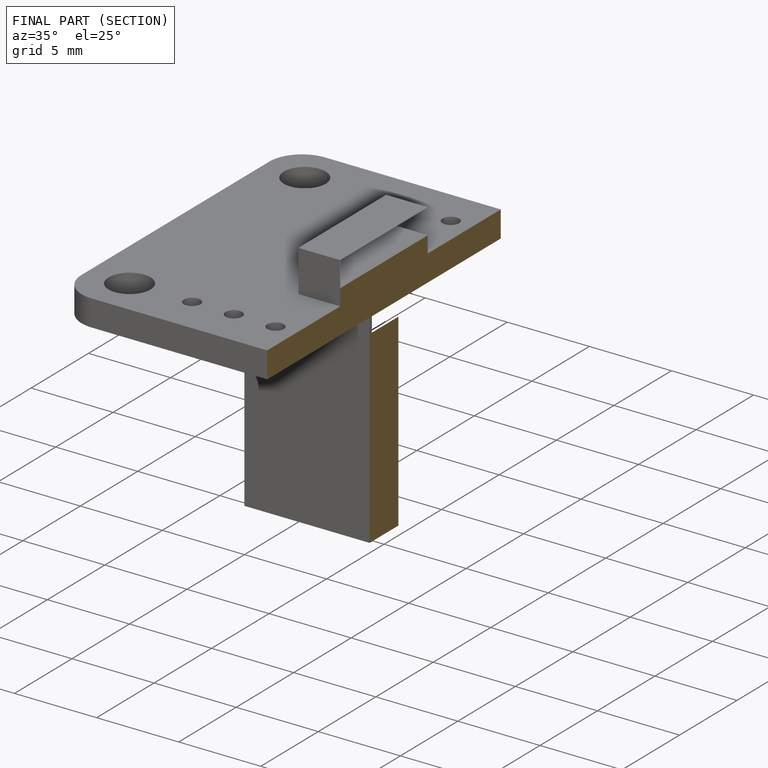
[diagram: finished part — half-section view (interior)]
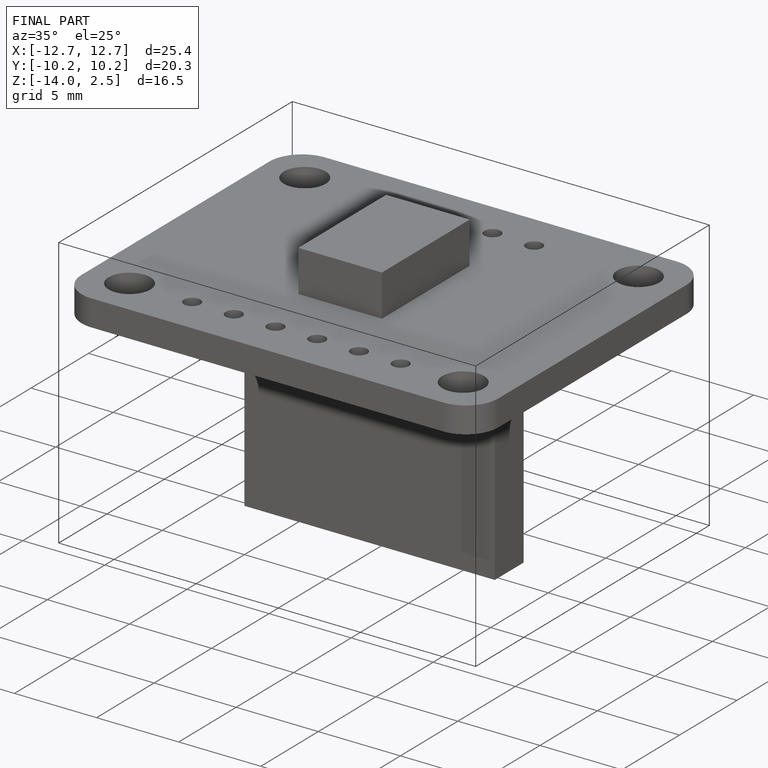
[diagram: finished part — iso view with bounding-box wireframe]
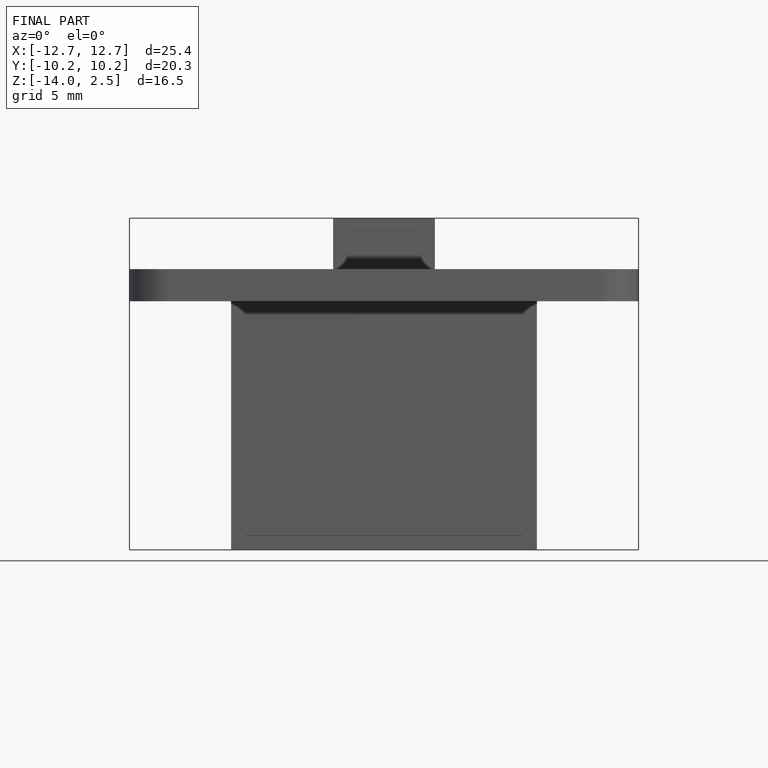
[diagram: finished part — front view with bounding-box wireframe]
